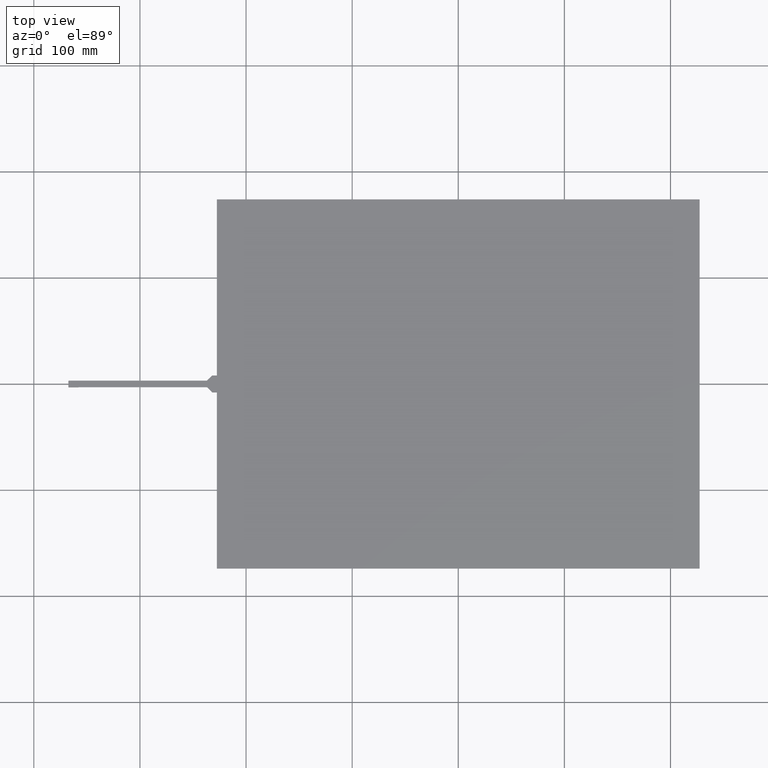
[diagram: clean part render]
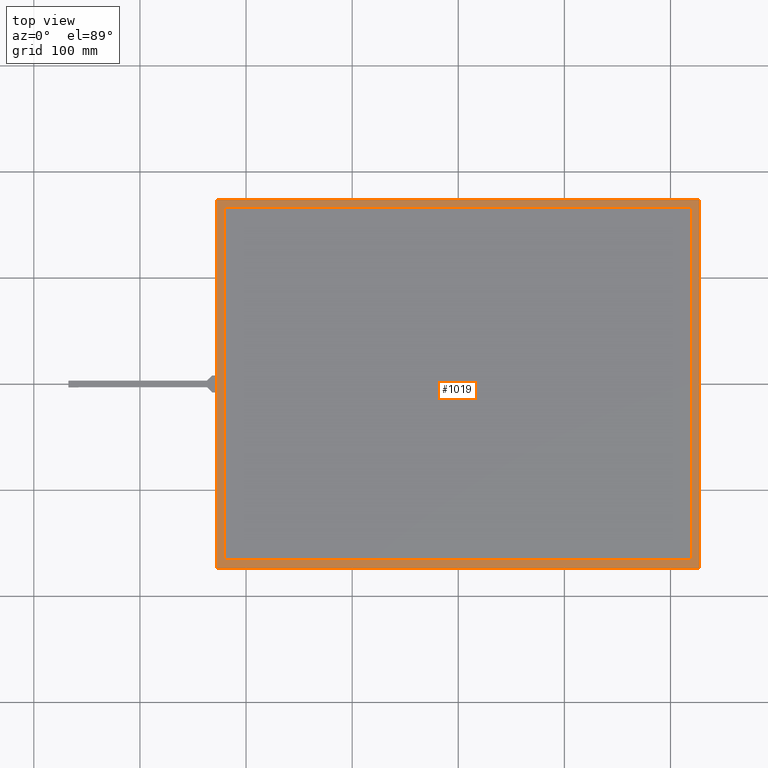
[diagram: same view with one face highlighted and labeled with its STEP entity id]
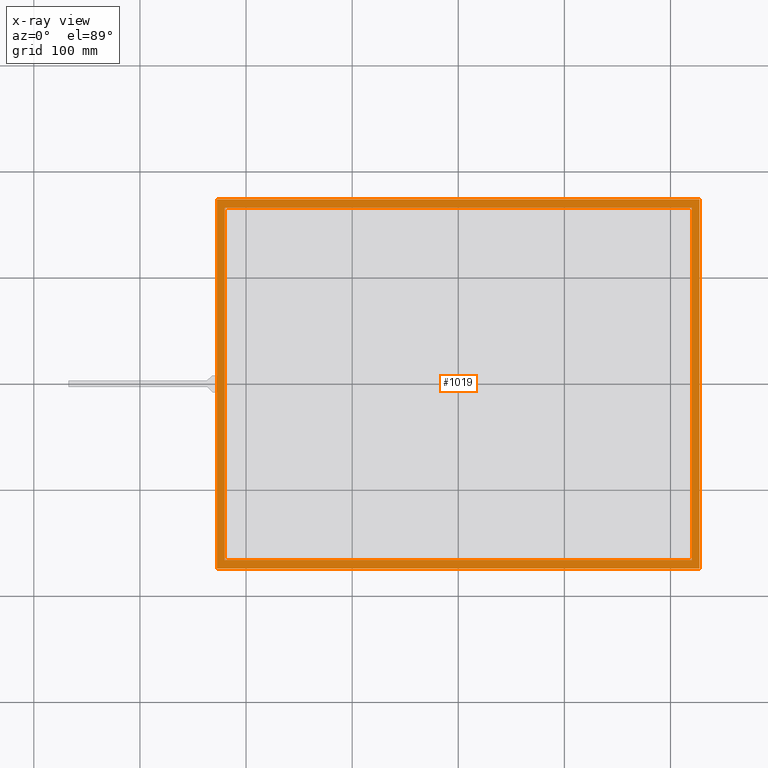
[diagram: x-ray of the same camera — body ghosted, the highlighted face saturated]
A machine part, top view. The second image highlights one B-rep face of the part: STEP entity #1019.
The next image is the same camera in x-ray: the body ghosted, the highlighted face saturated — about 0% of this face is hidden behind the body in this view.
In plain terms, the highlighted planar face has unit normal (0, 0, 1).
Its self-contained STEP definition (entity closure, byte-faithful):
#47=FACE_BOUND('',#191,.T.);
#87=PLANE('',#1102);
#138=FACE_OUTER_BOUND('',#190,.T.);
#190=EDGE_LOOP('',(#933,#934,#935,#936));
#191=EDGE_LOOP('',(#937,#938,#939,#940));
#301=LINE('',#1596,#427);
#305=LINE('',#1604,#431);
#308=LINE('',#1610,#434);
#311=LINE('',#1615,#437);
#313=LINE('',#1621,#439);
#314=LINE('',#1623,#440);
#315=LINE('',#1625,#441);
#316=LINE('',#1626,#442);
#427=VECTOR('',#1317,10.);
#431=VECTOR('',#1323,10.);
#434=VECTOR('',#1328,10.);
#437=VECTOR('',#1333,10.);
#439=VECTOR('',#1339,10.);
#440=VECTOR('',#1340,10.);
#441=VECTOR('',#1341,10.);
#442=VECTOR('',#1342,10.);
#539=VERTEX_POINT('',#1594);
#540=VERTEX_POINT('',#1595);
#543=VERTEX_POINT('',#1603);
#545=VERTEX_POINT('',#1609);
#547=VERTEX_POINT('',#1619);
#548=VERTEX_POINT('',#1620);
#549=VERTEX_POINT('',#1622);
#550=VERTEX_POINT('',#1624);
#669=EDGE_CURVE('',#539,#540,#301,.T.);
#673=EDGE_CURVE('',#543,#539,#305,.T.);
#676=EDGE_CURVE('',#545,#543,#308,.T.);
#679=EDGE_CURVE('',#540,#545,#311,.T.);
#681=EDGE_CURVE('',#547,#548,#313,.T.);
#682=EDGE_CURVE('',#548,#549,#314,.T.);
#683=EDGE_CURVE('',#549,#550,#315,.T.);
#684=EDGE_CURVE('',#550,#547,#316,.T.);
#933=ORIENTED_EDGE('',*,*,#681,.T.);
#934=ORIENTED_EDGE('',*,*,#682,.T.);
#935=ORIENTED_EDGE('',*,*,#683,.T.);
#936=ORIENTED_EDGE('',*,*,#684,.T.);
#937=ORIENTED_EDGE('',*,*,#669,.T.);
#938=ORIENTED_EDGE('',*,*,#679,.T.);
#939=ORIENTED_EDGE('',*,*,#676,.T.);
#940=ORIENTED_EDGE('',*,*,#673,.T.);
#1019=ADVANCED_FACE('',(#138,#47),#87,.T.);
#1102=AXIS2_PLACEMENT_3D('',#1618,#1337,#1338);
#1317=DIRECTION('',(-2.14018896313283E-16,1.,0.));
#1323=DIRECTION('',(-1.,-1.61413615574762E-16,0.));
#1328=DIRECTION('',(2.14018896313283E-16,-1.,0.));
#1333=DIRECTION('',(1.,0.,0.));
#1337=DIRECTION('center_axis',(0.,0.,1.));
#1338=DIRECTION('ref_axis',(1.,0.,0.));
#1339=DIRECTION('',(-1.,0.,0.));
#1340=DIRECTION('',(3.0626842058625E-16,-1.,0.));
#1341=DIRECTION('',(1.,1.56163238628593E-16,0.));
#1342=DIRECTION('',(0.,1.,0.));
#1594=CARTESIAN_POINT('',(-220.1,-166.,0.));
#1595=CARTESIAN_POINT('',(-220.1,166.,0.));
#1596=CARTESIAN_POINT('',(-220.1,-83.,0.));
#1603=CARTESIAN_POINT('',(220.1,-166.,0.));
#1604=CARTESIAN_POINT('',(110.05,-166.,0.));
#1609=CARTESIAN_POINT('',(220.1,166.,0.));
#1610=CARTESIAN_POINT('',(220.1,83.0000000000001,0.));
#1615=CARTESIAN_POINT('',(-110.05,166.,0.));
#1618=CARTESIAN_POINT('Origin',(-5.32907051820075E-14,3.5527136788005E-14,
0.));
#1619=CARTESIAN_POINT('',(227.5,174.,0.));
#1620=CARTESIAN_POINT('',(-227.5,174.,0.));
#1621=CARTESIAN_POINT('',(227.5,174.,0.));
#1622=CARTESIAN_POINT('',(-227.5,-174.,0.));
#1623=CARTESIAN_POINT('',(-227.5,174.,0.));
#1624=CARTESIAN_POINT('',(227.5,-174.,0.));
#1625=CARTESIAN_POINT('',(-227.5,-174.,0.));
#1626=CARTESIAN_POINT('',(227.5,-174.,0.));